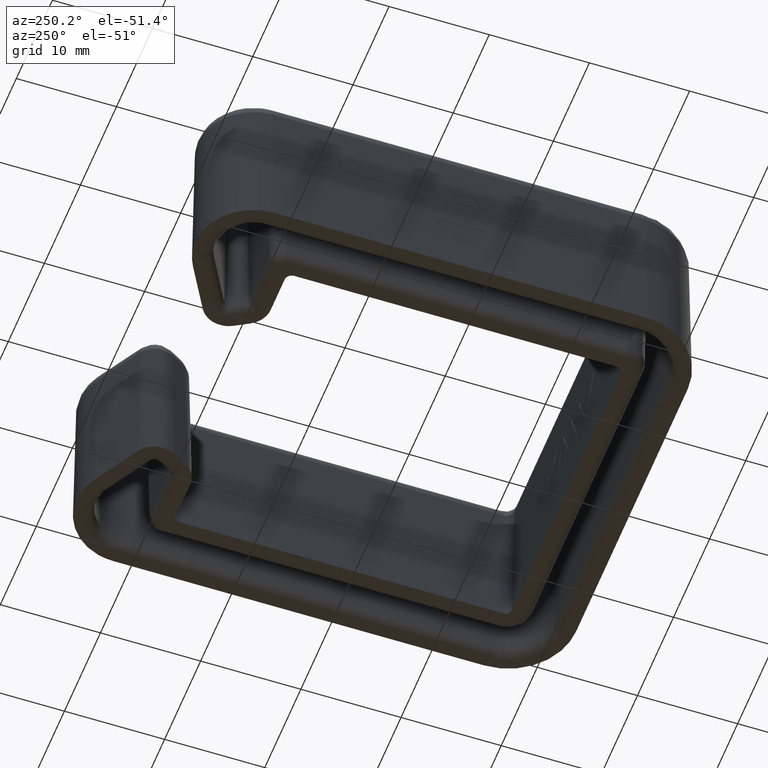
[diagram: clean part render]
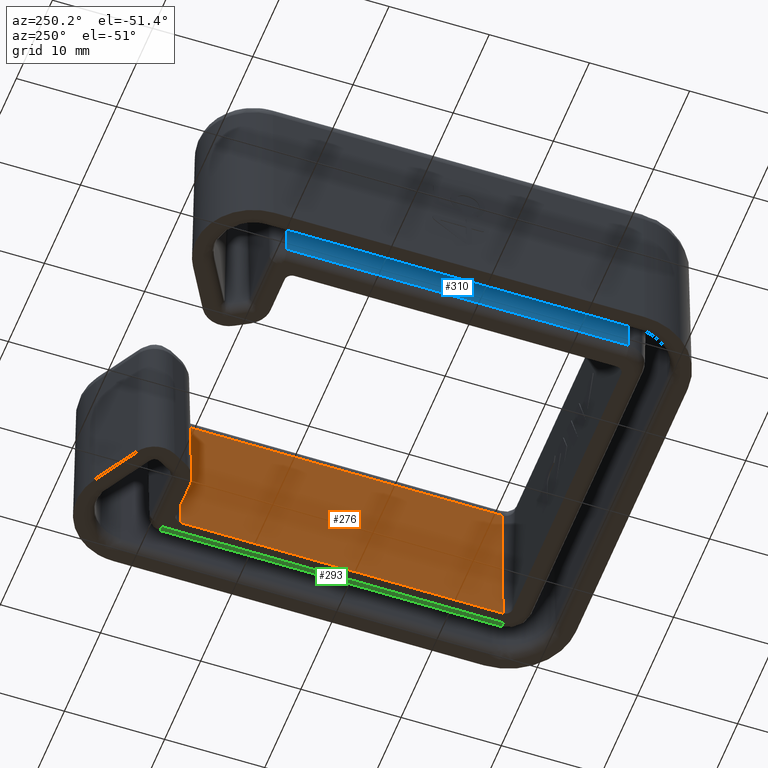
[diagram: same view with three faces highlighted in distinct colors, each labeled with its STEP entity id]
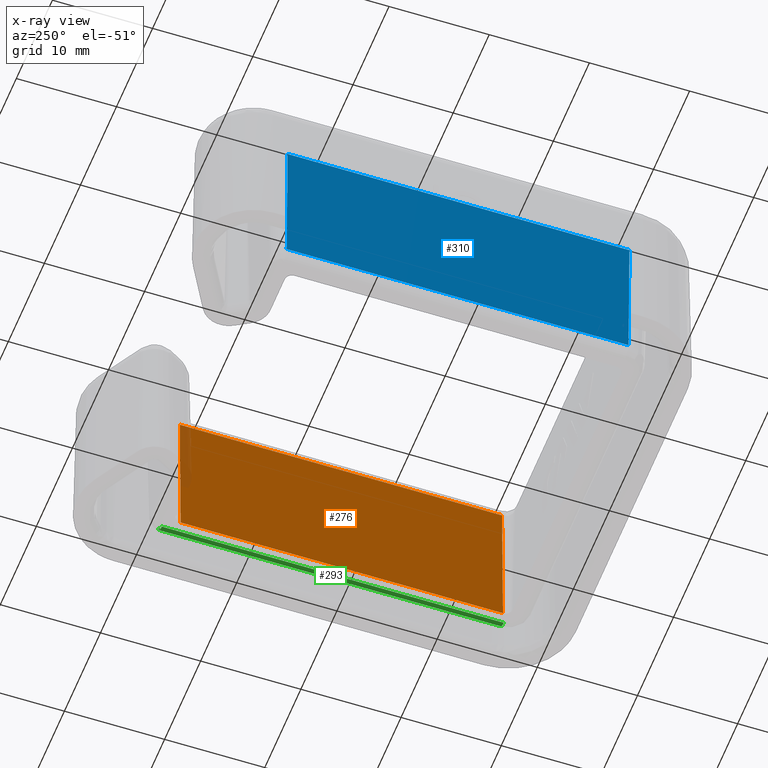
[diagram: x-ray of the same camera — body ghosted, the three highlighted faces saturated]
A machine part, auxiliary view with three faces highlighted in distinct colors.
The next image is the same camera in x-ray (body ghosted, the three faces saturated) — at least one of them is partly hidden behind the body in this view.
Their STEP definitions:

[orange] entity #276 — the highlighted face is a freeform B-spline surface patch.
#276=ADVANCED_FACE('',(#602),#603,.F.);
#602=FACE_OUTER_BOUND('',#1931,.T.);
#603=B_SPLINE_SURFACE_WITH_KNOTS('',1,1,((#1932,#1933),(#1934,#1935)),.UNSPECIFIED.,.F.,.F.,.F.,(2,2),(2,2),(0.0,1.0),(0.0,1.0),.UNSPECIFIED.);
#1931=EDGE_LOOP('',(#3572,#3573,#3574,#3575));
#1932=CARTESIAN_POINT('',(16.0156991359145,4.95000000001271,15.0349048128745));
#1933=CARTESIAN_POINT('',(16.0156991359068,37.1249255972026,15.0349048128747));
#1934=CARTESIAN_POINT('',(15.7532638962162,4.95000000001271,-1.31119650068143E-13));
#1935=CARTESIAN_POINT('',(15.7532638962085,37.1249255972026,3.65406881746536E-15));
#3572=ORIENTED_EDGE('',*,*,#4264,.F.);
#3573=ORIENTED_EDGE('',*,*,#4265,.F.);
#3574=ORIENTED_EDGE('',*,*,#4266,.F.);
#3575=ORIENTED_EDGE('',*,*,#4267,.F.);
#4264=EDGE_CURVE('',#5010,#5011,#5012,.F.);
#4265=EDGE_CURVE('',#5013,#5010,#5014,.T.);
#4266=EDGE_CURVE('',#5015,#5013,#5016,.F.);
#4267=EDGE_CURVE('',#5011,#5015,#5017,.T.);
#5010=VERTEX_POINT('',#7489);
#5011=VERTEX_POINT('',#7490);
#5012=B_SPLINE_CURVE_WITH_KNOTS('',1,(#7491,#7492),.UNSPECIFIED.,.F.,.F.,(2,2),(0.0,1.0),.UNSPECIFIED.);
#5013=VERTEX_POINT('',#7493);
#5014=B_SPLINE_CURVE_WITH_KNOTS('',1,(#7494,#7495),.UNSPECIFIED.,.F.,.F.,(2,2),(0.0,1.0),.UNSPECIFIED.);
#5015=VERTEX_POINT('',#7496);
#5016=B_SPLINE_CURVE_WITH_KNOTS('',1,(#7497,#7498),.UNSPECIFIED.,.F.,.F.,(2,2),(-1.0,0.0),.UNSPECIFIED.);
#5017=B_SPLINE_CURVE_WITH_KNOTS('',1,(#7499,#7500),.UNSPECIFIED.,.F.,.F.,(2,2),(0.0,1.0),.UNSPECIFIED.);
#7489=CARTESIAN_POINT('',(15.7532638962085,37.1249255972026,2.37450525647299E-15));
#7490=CARTESIAN_POINT('',(16.0156991359068,37.1249255972027,15.0349048128747));
#7491=CARTESIAN_POINT('',(16.0156991359068,37.1249255972027,15.0349048128745));
#7492=CARTESIAN_POINT('',(15.7532638962085,37.1249255972026,3.46944695195361E-15));
#7493=CARTESIAN_POINT('',(15.7532638962162,4.95000000001271,-4.25500677053964E-14));
#7494=CARTESIAN_POINT('',(15.7532638962162,4.95000000001271,0.0));
#7495=CARTESIAN_POINT('',(15.7532638961894,37.1249255972027,0.0));
#7496=CARTESIAN_POINT('',(16.0156991359145,4.95000000001276,15.0349048128746));
#7497=CARTESIAN_POINT('',(15.7532638962162,4.95000000001271,3.46944695195361E-15));
#7498=CARTESIAN_POINT('',(16.0156991359145,4.95000000001277,15.0349048128745));
#7499=CARTESIAN_POINT('',(16.0156991359068,37.1249255972027,15.0349048128745));
#7500=CARTESIAN_POINT('',(16.0156991359145,4.95000000001277,15.0349048128745));

[blue] entity #310 — the highlighted face is a freeform B-spline surface patch.
#310=ADVANCED_FACE('',(#671),#672,.T.);
#671=FACE_OUTER_BOUND('',#2484,.T.);
#672=B_SPLINE_SURFACE_WITH_KNOTS('',1,1,((#2485,#2486),(#2487,#2488)),.UNSPECIFIED.,.F.,.F.,.F.,(2,2),(2,2),(0.0,1.0),(0.0,1.0),.UNSPECIFIED.);
#2484=EDGE_LOOP('',(#3772,#3773,#3774,#3775));
#2485=CARTESIAN_POINT('',(-17.8053244581215,4.49999999998649,0.98254759356288));
#2486=CARTESIAN_POINT('',(-17.8053244581305,38.6249255972021,0.982547593562723));
#2487=CARTESIAN_POINT('',(-18.050000000004,4.49999999998649,15.0));
#2488=CARTESIAN_POINT('',(-18.050000000013,38.6249255972021,14.9999999999998));
#3772=ORIENTED_EDGE('',*,*,#4350,.T.);
#3773=ORIENTED_EDGE('',*,*,#4334,.F.);
#3774=ORIENTED_EDGE('',*,*,#4208,.T.);
#3775=ORIENTED_EDGE('',*,*,#4203,.T.);
#4203=EDGE_CURVE('',#4878,#4909,#4911,.T.);
#4208=EDGE_CURVE('',#4919,#4878,#4920,.T.);
#4334=EDGE_CURVE('',#4919,#5106,#5109,.T.);
#4350=EDGE_CURVE('',#4909,#5106,#5127,.T.);
#4878=VERTEX_POINT('',#6954);
#4909=VERTEX_POINT('',#7082);
#4911=B_SPLINE_CURVE_WITH_KNOTS('',1,(#7098,#7099),.UNSPECIFIED.,.F.,.F.,(2,2),(0.0,1.0),.UNSPECIFIED.);
#4919=VERTEX_POINT('',#7120);
#4920=B_SPLINE_CURVE_WITH_KNOTS('',1,(#7121,#7122),.UNSPECIFIED.,.F.,.F.,(2,2),(0.0,1.0),.UNSPECIFIED.);
#5106=VERTEX_POINT('',#8182);
#5109=B_SPLINE_CURVE_WITH_KNOTS('',1,(#8205,#8206),.UNSPECIFIED.,.F.,.F.,(2,2),(0.0,1.0),.UNSPECIFIED.);
#5127=B_SPLINE_CURVE_WITH_KNOTS('',1,(#8311,#8312),.UNSPECIFIED.,.F.,.F.,(2,2),(-1.0,0.0),.UNSPECIFIED.);
#6954=CARTESIAN_POINT('',(-18.050000000004,4.49999999998644,15.0));
#7082=CARTESIAN_POINT('',(-18.050000000013,38.6249255972021,15.0));
#7098=CARTESIAN_POINT('',(-18.050000000004,4.49999999998649,15.0));
#7099=CARTESIAN_POINT('',(-18.050000000013,38.6249255972021,14.9999999999998));
#7120=CARTESIAN_POINT('',(-17.8053244581215,4.49999999998649,0.982547593562711));
#7121=CARTESIAN_POINT('',(-17.8053244581215,4.49999999998649,0.98254759356288));
#7122=CARTESIAN_POINT('',(-18.050000000004,4.49999999998649,15.0));
#8182=CARTESIAN_POINT('',(-17.8053244581305,38.6249255972021,0.98254759356272));
#8205=CARTESIAN_POINT('',(-17.8053244581215,4.49999999998649,0.982547593562716));
#8206=CARTESIAN_POINT('',(-17.8053244581305,38.6249255972021,0.982547593562716));
#8311=CARTESIAN_POINT('',(-18.050000000013,38.6249255972021,14.9999999999998));
#8312=CARTESIAN_POINT('',(-17.8053244581305,38.6249255972021,0.982547593562723));

[green] entity #293 — the highlighted face is a freeform B-spline surface patch.
#293=ADVANCED_FACE('',(#637),#638,.T.);
#637=FACE_OUTER_BOUND('',#2224,.T.);
#638=(B_SPLINE_SURFACE(3,1,((#2226,#2227),(#2228,#2229),(#2230,#2231),(#2232,#2233)),.UNSPECIFIED.,.F.,.F.,.F.)B_SPLINE_SURFACE_WITH_KNOTS((4,4),(2,2),(0.0,1.0),(0.0,1.0),.UNSPECIFIED.)RATIONAL_B_SPLINE_SURFACE(((1.0,1.0),(0.808833632769452,0.808833632769452),(0.808833632769452,0.808833632769452),(1.0,1.0)))BOUNDED_SURFACE()REPRESENTATION_ITEM('')GEOMETRIC_REPRESENTATION_ITEM()SURFACE());
#2224=EDGE_LOOP('',(#3704,#3705,#3706,#3707));
#2226=CARTESIAN_POINT('',(16.8054767629489,38.6249255972026,0.0));
#2227=CARTESIAN_POINT('',(16.805476762957,4.50000000001397,0.0));
#2228=CARTESIAN_POINT('',(17.3831886976846,38.6249255972027,-6.2634592395813E-15));
#2229=CARTESIAN_POINT('',(17.3831886976928,4.50000000001411,-6.2634592395813E-15));
#2230=CARTESIAN_POINT('',(17.7952419946166,38.6249255972028,0.404923647152856));
#2231=CARTESIAN_POINT('',(17.7952419946248,4.50000000001421,0.404923647152856));
#2232=CARTESIAN_POINT('',(17.8053244581053,38.6249255972028,0.982547593562715));
#2233=CARTESIAN_POINT('',(17.8053244581134,4.50000000001421,0.982547593562715));
#3704=ORIENTED_EDGE('',*,*,#4335,.F.);
#3705=ORIENTED_EDGE('',*,*,#4278,.F.);
#3706=ORIENTED_EDGE('',*,*,#4215,.T.);
#3707=ORIENTED_EDGE('',*,*,#4336,.T.);
#4215=EDGE_CURVE('',#4930,#4931,#4932,.T.);
#4278=EDGE_CURVE('',#4930,#5032,#5033,.T.);
#4335=EDGE_CURVE('',#5032,#5110,#5111,.T.);
#4336=EDGE_CURVE('',#4931,#5110,#5112,.T.);
#4930=VERTEX_POINT('',#7165);
#4931=VERTEX_POINT('',#7166);
#4932=(B_SPLINE_CURVE(3,(#7168,#7169,#7170,#7171),.UNSPECIFIED.,.F.,.F.)B_SPLINE_CURVE_WITH_KNOTS((4,4),(0.0,1.0),.UNSPECIFIED.)RATIONAL_B_SPLINE_CURVE((1.0,0.808833632769452,0.808833632769452,1.0))BOUNDED_CURVE()REPRESENTATION_ITEM('')GEOMETRIC_REPRESENTATION_ITEM()CURVE());
#5032=VERTEX_POINT('',#7618);
#5033=B_SPLINE_CURVE_WITH_KNOTS('',1,(#7619,#7620),.UNSPECIFIED.,.F.,.F.,(2,2),(0.0,1.0),.UNSPECIFIED.);
#5110=VERTEX_POINT('',#8207);
#5111=(B_SPLINE_CURVE(3,(#8209,#8210,#8211,#8212),.UNSPECIFIED.,.F.,.F.)B_SPLINE_CURVE_WITH_KNOTS((4,4),(0.0636142352703555,0.936385764729393),.UNSPECIFIED.)RATIONAL_B_SPLINE_CURVE((0.957077234090338,0.774116256090184,0.774116256090131,0.95707723409018))BOUNDED_CURVE()REPRESENTATION_ITEM('')GEOMETRIC_REPRESENTATION_ITEM()CURVE());
#5112=B_SPLINE_CURVE_WITH_KNOTS('',1,(#8219,#8220),.UNSPECIFIED.,.F.,.F.,(2,2),(0.0,1.0),.UNSPECIFIED.);
#7165=CARTESIAN_POINT('',(16.8054767629489,38.6249255972025,0.0));
#7166=CARTESIAN_POINT('',(17.8053244581053,38.6249255972028,0.982547593562755));
#7168=CARTESIAN_POINT('',(16.8054767629489,38.6249255972026,0.0));
#7169=CARTESIAN_POINT('',(17.3831886976846,38.6249255972027,-6.2634592395813E-15));
#7170=CARTESIAN_POINT('',(17.7952419946166,38.6249255972028,0.404923647152856));
#7171=CARTESIAN_POINT('',(17.8053244581053,38.6249255972028,0.982547593562715));
#7618=CARTESIAN_POINT('',(16.8054767629571,4.50000000001397,-1.28002361632082E-17));
#7619=CARTESIAN_POINT('',(16.8054767629489,38.6249255972025,0.0));
#7620=CARTESIAN_POINT('',(16.8054767629773,4.50000000001397,0.0));
#8207=CARTESIAN_POINT('',(17.8053244581136,4.50000000001421,0.982547593562674));
#8209=CARTESIAN_POINT('',(16.8054767629572,4.50000000001397,-3.84007084896247E-17));
#8210=CARTESIAN_POINT('',(17.383188697693,4.50000000001411,-1.26237220630919E-13));
#8211=CARTESIAN_POINT('',(17.795241994625,4.5000000000142,0.404923647152645));
#8212=CARTESIAN_POINT('',(17.8053244581138,4.50000000001421,0.982547593562535));
#8219=CARTESIAN_POINT('',(17.8053244581053,38.6249255972028,0.982547593562715));
#8220=CARTESIAN_POINT('',(17.8053244581134,4.50000000001421,0.982547593562715));